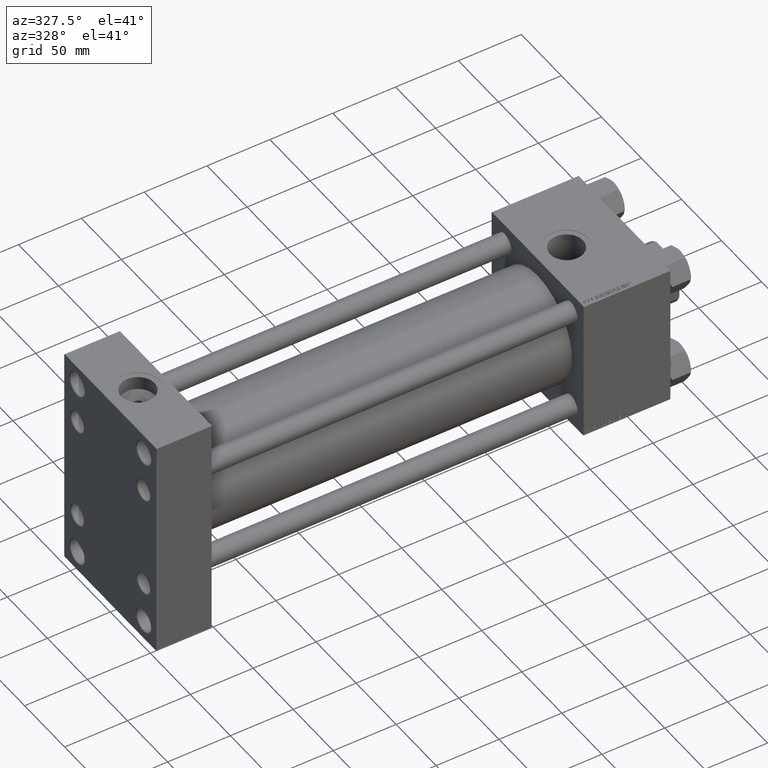
[diagram: clean part render]
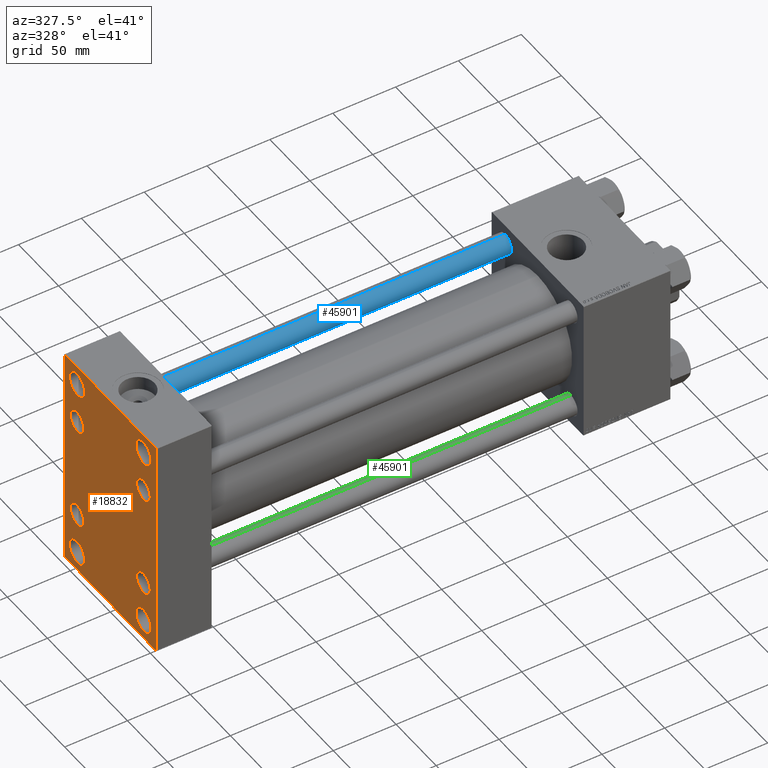
[diagram: same view with three faces highlighted in distinct colors, each labeled with its STEP entity id]
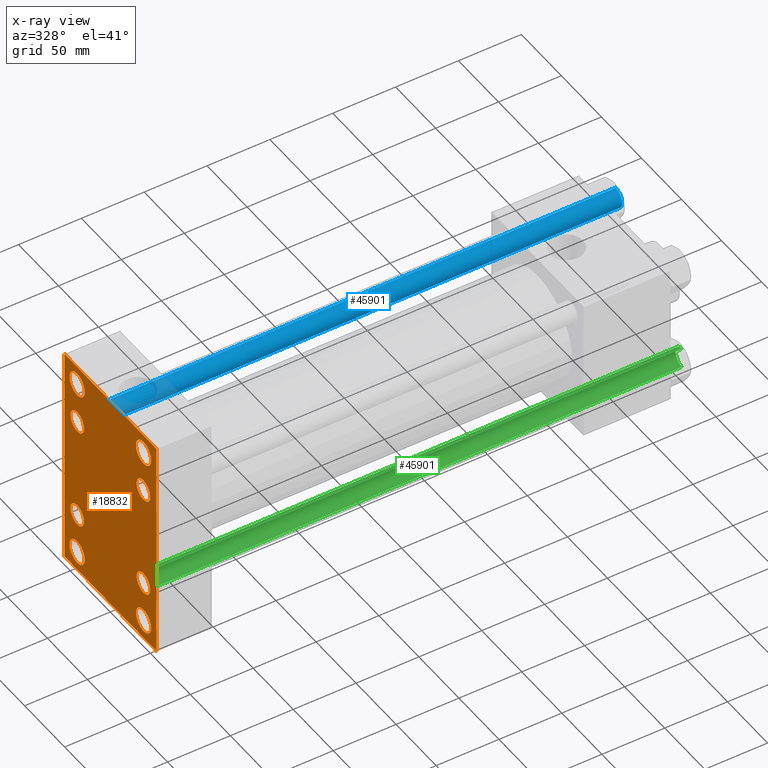
[diagram: x-ray of the same camera — body ghosted, the three highlighted faces saturated]
A machine part, auxiliary view with three faces highlighted in distinct colors.
The next image is the same camera in x-ray (body ghosted, the three faces saturated) — at least one of them is partly hidden behind the body in this view.
Their STEP definitions:

[orange] entity #18832 — the highlighted planar face has unit normal (-1, 0, 0).
#431 = CARTESIAN_POINT ( 'NONE',  ( 0.000000000000000000, 41.50000000000000711, -74.50000000000000000 ) ) ;
#459 = FACE_BOUND ( 'NONE', #35500, .T. ) ;
#1200 = CARTESIAN_POINT ( 'NONE',  ( 0.000000000000000000, 41.50000000000000711, -84.00000000000011369 ) ) ;
#1303 = EDGE_CURVE ( 'NONE', #9229, #30897, #12121, .T. ) ;
#1506 = AXIS2_PLACEMENT_3D ( 'NONE', #18229, #2062, #42933 ) ;
#1726 = DIRECTION ( 'NONE',  ( 0.000000000000000000, -1.000000000000000000, -1.206764157201257291E-16 ) ) ;
#2062 = DIRECTION ( 'NONE',  ( 1.000000000000000000, -0.000000000000000000, 0.000000000000000000 ) ) ;
#2424 = VECTOR ( 'NONE', #28697, 1000.000000000000000 ) ;
#2434 = VERTEX_POINT ( 'NONE', #16046 ) ;
#2514 = CARTESIAN_POINT ( 'NONE',  ( 0.000000000000000000, -41.50000000000000000, 74.50000000000000000 ) ) ;
#2684 = ORIENTED_EDGE ( 'NONE', *, *, #8012, .T. ) ;
#3325 = AXIS2_PLACEMENT_3D ( 'NONE', #8398, #24606, #4431 ) ;
#4431 = DIRECTION ( 'NONE',  ( -0.000000000000000000, 0.000000000000000000, 1.000000000000000000 ) ) ;
#5000 = EDGE_CURVE ( 'NONE', #33916, #39177, #42700, .T. ) ;
#5093 = DIRECTION ( 'NONE',  ( 1.000000000000000000, -0.000000000000000000, 0.000000000000000000 ) ) ;
#5345 = DIRECTION ( 'NONE',  ( 0.000000000000000000, 0.000000000000000000, 1.000000000000000000 ) ) ;
#5704 = DIRECTION ( 'NONE',  ( 1.000000000000000000, -0.000000000000000000, 0.000000000000000000 ) ) ;
#5920 = CARTESIAN_POINT ( 'NONE',  ( 0.000000000000000000, 41.50000000000000711, 74.50000000000000000 ) ) ;
#6469 = CIRCLE ( 'NONE', #10703, 9.500000000000119016 ) ;
#6533 = VERTEX_POINT ( 'NONE', #21334 ) ;
#7035 = AXIS2_PLACEMENT_3D ( 'NONE', #25129, #28865, #49576 ) ;
#7041 = CARTESIAN_POINT ( 'NONE',  ( 0.000000000000000000, -57.49999999999999289, 89.99999999999998579 ) ) ;
#7089 = ORIENTED_EDGE ( 'NONE', *, *, #41753, .T. ) ;
#7188 = EDGE_CURVE ( 'NONE', #12635, #2434, #19513, .T. ) ;
#7690 = EDGE_CURVE ( 'NONE', #18065, #44829, #19998, .T. ) ;
#7789 = LINE ( 'NONE', #11497, #34775 ) ;
#8012 = EDGE_CURVE ( 'NONE', #41757, #19490, #9883, .T. ) ;
#8333 = CIRCLE ( 'NONE', #25312, 9.500000000000119016 ) ;
#8398 = CARTESIAN_POINT ( 'NONE',  ( 0.000000000000000000, 0.000000000000000000, 0.000000000000000000 ) ) ;
#8632 = EDGE_CURVE ( 'NONE', #44414, #36721, #6469, .T. ) ;
#8925 = EDGE_CURVE ( 'NONE', #38288, #33050, #34469, .T. ) ;
#9229 = VERTEX_POINT ( 'NONE', #49749 ) ;
#9349 = CARTESIAN_POINT ( 'NONE',  ( 0.000000000000000000, -41.50000000000000000, -84.00000000000011369 ) ) ;
#9565 = EDGE_LOOP ( 'NONE', ( #12700, #13304 ) ) ;
#9883 = CIRCLE ( 'NONE', #34435, 9.500000000000119016 ) ;
#9992 = CARTESIAN_POINT ( 'NONE',  ( 0.000000000000000000, 41.50000000000000711, -74.50000000000000000 ) ) ;
#10565 = EDGE_CURVE ( 'NONE', #30897, #9229, #16746, .T. ) ;
#10703 = AXIS2_PLACEMENT_3D ( 'NONE', #5920, #38304, #38558 ) ;
#11040 = CARTESIAN_POINT ( 'NONE',  ( 0.000000000000000000, -41.34999999999998721, 32.85000000000002984 ) ) ;
#11100 = CARTESIAN_POINT ( 'NONE',  ( 0.000000000000000000, 41.34999999999999432, -41.35000000000000142 ) ) ;
#11222 = ORIENTED_EDGE ( 'NONE', *, *, #16264, .T. ) ;
#11413 = ORIENTED_EDGE ( 'NONE', *, *, #22853, .T. ) ;
#11497 = CARTESIAN_POINT ( 'NONE',  ( 0.000000000000000000, -73.49999999999882050, -73.50000000000189004 ) ) ;
#11563 = CARTESIAN_POINT ( 'NONE',  ( 0.000000000000000000, 57.00000000000000000, -90.00000000000000000 ) ) ;
#11877 = EDGE_CURVE ( 'NONE', #45757, #25219, #44760, .T. ) ;
#12104 = AXIS2_PLACEMENT_3D ( 'NONE', #431, #16597, #37049 ) ;
#12121 = CIRCLE ( 'NONE', #7035, 8.499999999999980460 ) ;
#12126 = FACE_BOUND ( 'NONE', #35203, .T. ) ;
#12566 = DIRECTION ( 'NONE',  ( 1.000000000000000000, -0.000000000000000000, 0.000000000000000000 ) ) ;
#12635 = VERTEX_POINT ( 'NONE', #50079 ) ;
#12700 = ORIENTED_EDGE ( 'NONE', *, *, #39051, .T. ) ;
#12828 = CIRCLE ( 'NONE', #44191, 9.500000000000119016 ) ;
#12967 = CIRCLE ( 'NONE', #12104, 9.500000000000119016 ) ;
#13230 = CARTESIAN_POINT ( 'NONE',  ( 0.000000000000000000, 41.34999999999999432, -32.85000000000002274 ) ) ;
#13304 = ORIENTED_EDGE ( 'NONE', *, *, #7690, .T. ) ;
#13802 = EDGE_CURVE ( 'NONE', #41169, #26399, #19225, .T. ) ;
#14418 = AXIS2_PLACEMENT_3D ( 'NONE', #24260, #12566, #40469 ) ;
#14699 = CARTESIAN_POINT ( 'NONE',  ( 0.000000000000000000, -41.34999999999998721, 41.35000000000000853 ) ) ;
#14868 = CARTESIAN_POINT ( 'NONE',  ( 0.000000000000000000, 41.50000000000000711, 84.00000000000011369 ) ) ;
#15049 = AXIS2_PLACEMENT_3D ( 'NONE', #19940, #36149, #15958 ) ;
#15422 = DIRECTION ( 'NONE',  ( 1.000000000000000000, -0.000000000000000000, 0.000000000000000000 ) ) ;
#15635 = EDGE_CURVE ( 'NONE', #39177, #49744, #26234, .T. ) ;
#15958 = DIRECTION ( 'NONE',  ( 0.000000000000000000, 0.000000000000000000, 1.000000000000000000 ) ) ;
#16046 = CARTESIAN_POINT ( 'NONE',  ( 0.000000000000000000, -57.49999999999999289, -89.49999999999998579 ) ) ;
#16089 = DIRECTION ( 'NONE',  ( 1.000000000000000000, -0.000000000000000000, 0.000000000000000000 ) ) ;
#16264 = EDGE_CURVE ( 'NONE', #51203, #37465, #16745, .T. ) ;
#16363 = FACE_BOUND ( 'NONE', #9565, .T. ) ;
#16597 = DIRECTION ( 'NONE',  ( 1.000000000000000000, -0.000000000000000000, 0.000000000000000000 ) ) ;
#16745 = LINE ( 'NONE', #41190, #2424 ) ;
#16746 = CIRCLE ( 'NONE', #37063, 8.499999999999980460 ) ;
#16976 = CARTESIAN_POINT ( 'NONE',  ( 0.000000000000000000, -41.50000000000000000, 64.99999999999987210 ) ) ;
#17116 = DIRECTION ( 'NONE',  ( 0.000000000000000000, 0.000000000000000000, 1.000000000000000000 ) ) ;
#18065 = VERTEX_POINT ( 'NONE', #40481 ) ;
#18229 = CARTESIAN_POINT ( 'NONE',  ( 0.000000000000000000, 41.50000000000000711, 74.50000000000000000 ) ) ;
#18687 = DIRECTION ( 'NONE',  ( 1.000000000000000000, -0.000000000000000000, 0.000000000000000000 ) ) ;
#18705 = ORIENTED_EDGE ( 'NONE', *, *, #7188, .F. ) ;
#18832 = ADVANCED_FACE ( 'NONE', ( #459, #20355, #52504, #36813, #12126, #36562, #16363, #19818, #41068 ), #37077, .T. ) ;
#19225 = CIRCLE ( 'NONE', #43849, 9.500000000000119016 ) ;
#19490 = VERTEX_POINT ( 'NONE', #1200 ) ;
#19513 = LINE ( 'NONE', #7041, #47152 ) ;
#19818 = FACE_BOUND ( 'NONE', #33492, .T. ) ;
#19940 = CARTESIAN_POINT ( 'NONE',  ( 0.000000000000000000, -41.50000000000000000, 74.50000000000000000 ) ) ;
#19998 = CIRCLE ( 'NONE', #23363, 8.499999999999980460 ) ;
#20067 = CARTESIAN_POINT ( 'NONE',  ( 0.000000000000000000, -41.34999999999998721, 41.35000000000000853 ) ) ;
#20335 = DIRECTION ( 'NONE',  ( 0.000000000000000000, 0.000000000000000000, 1.000000000000000000 ) ) ;
#20355 = FACE_BOUND ( 'NONE', #42416, .T. ) ;
#20569 = EDGE_CURVE ( 'NONE', #49744, #2434, #7789, .T. ) ;
#21096 = DIRECTION ( 'NONE',  ( 1.000000000000000000, -0.000000000000000000, 0.000000000000000000 ) ) ;
#21231 = EDGE_CURVE ( 'NONE', #33050, #38288, #28857, .T. ) ;
#21334 = CARTESIAN_POINT ( 'NONE',  ( 0.000000000000000000, 41.34999999999999432, 32.85000000000002274 ) ) ;
#21363 = EDGE_CURVE ( 'NONE', #6533, #49362, #23742, .T. ) ;
#21887 = DIRECTION ( 'NONE',  ( 0.000000000000000000, 0.000000000000000000, 1.000000000000000000 ) ) ;
#22732 = ORIENTED_EDGE ( 'NONE', *, *, #5000, .T. ) ;
#22853 = EDGE_CURVE ( 'NONE', #25219, #45757, #12828, .T. ) ;
#23044 = DIRECTION ( 'NONE',  ( 0.000000000000000000, 0.000000000000000000, 1.000000000000000000 ) ) ;
#23363 = AXIS2_PLACEMENT_3D ( 'NONE', #11100, #30500, #23044 ) ;
#23742 = CIRCLE ( 'NONE', #14418, 8.499999999999980460 ) ;
#24260 = CARTESIAN_POINT ( 'NONE',  ( 0.000000000000000000, 41.34999999999999432, 41.35000000000000142 ) ) ;
#24391 = CARTESIAN_POINT ( 'NONE',  ( 0.000000000000000000, 57.00000000000000000, 90.00000000000000000 ) ) ;
#24606 = DIRECTION ( 'NONE',  ( -1.000000000000000000, 0.000000000000000000, -0.000000000000000000 ) ) ;
#25122 = CARTESIAN_POINT ( 'NONE',  ( -0.000000000000000000, -73.49999999999960210, 73.50000000000062528 ) ) ;
#25129 = CARTESIAN_POINT ( 'NONE',  ( 0.000000000000000000, -41.34999999999998721, -41.35000000000000853 ) ) ;
#25219 = VERTEX_POINT ( 'NONE', #32642 ) ;
#25312 = AXIS2_PLACEMENT_3D ( 'NONE', #25784, #5093, #5345 ) ;
#25444 = DIRECTION ( 'NONE',  ( -0.000000000000000000, -0.7071067811865474617, -0.7071067811865474617 ) ) ;
#25784 = CARTESIAN_POINT ( 'NONE',  ( 0.000000000000000000, -41.50000000000000000, -74.50000000000000000 ) ) ;
#26234 = LINE ( 'NONE', #33932, #29508 ) ;
#26242 = CARTESIAN_POINT ( 'NONE',  ( 0.000000000000000000, 73.50000000000000000, -73.50000000000000000 ) ) ;
#26399 = VERTEX_POINT ( 'NONE', #39709 ) ;
#26665 = ORIENTED_EDGE ( 'NONE', *, *, #13802, .T. ) ;
#27187 = DIRECTION ( 'NONE',  ( 1.000000000000000000, -0.000000000000000000, 0.000000000000000000 ) ) ;
#27321 = EDGE_CURVE ( 'NONE', #19490, #41757, #12967, .T. ) ;
#27690 = CARTESIAN_POINT ( 'NONE',  ( 0.000000000000000000, -56.99999999999998579, -90.00000000000002842 ) ) ;
#28697 = DIRECTION ( 'NONE',  ( 0.000000000000000000, 0.7071067811865279218, -0.7071067811865672237 ) ) ;
#28857 = CIRCLE ( 'NONE', #49241, 8.499999999999980460 ) ;
#28865 = DIRECTION ( 'NONE',  ( 1.000000000000000000, -0.000000000000000000, 0.000000000000000000 ) ) ;
#29508 = VECTOR ( 'NONE', #42443, 1000.000000000000000 ) ;
#29659 = DIRECTION ( 'NONE',  ( 1.000000000000000000, -0.000000000000000000, 0.000000000000000000 ) ) ;
#30500 = DIRECTION ( 'NONE',  ( 1.000000000000000000, -0.000000000000000000, 0.000000000000000000 ) ) ;
#30823 = EDGE_LOOP ( 'NONE', ( #38529, #22732, #40458, #46356, #18705, #51729, #52083, #11222 ) ) ;
#30897 = VERTEX_POINT ( 'NONE', #42051 ) ;
#31576 = DIRECTION ( 'NONE',  ( -0.000000000000000000, 0.7071067811865524577, 0.7071067811865426878 ) ) ;
#32642 = CARTESIAN_POINT ( 'NONE',  ( 0.000000000000000000, -41.50000000000000000, 84.00000000000011369 ) ) ;
#32939 = VECTOR ( 'NONE', #39289, 1000.000000000000000 ) ;
#33050 = VERTEX_POINT ( 'NONE', #38428 ) ;
#33492 = EDGE_LOOP ( 'NONE', ( #47076, #48361 ) ) ;
#33637 = CARTESIAN_POINT ( 'NONE',  ( 0.000000000000000000, 41.34999999999999432, -41.35000000000000142 ) ) ;
#33913 = CARTESIAN_POINT ( 'NONE',  ( 0.000000000000000000, 41.50000000000000711, -64.99999999999987210 ) ) ;
#33916 = VERTEX_POINT ( 'NONE', #50665 ) ;
#33932 = CARTESIAN_POINT ( 'NONE',  ( 0.000000000000000000, 57.50000000000000000, -90.00000000000000000 ) ) ;
#34164 = DIRECTION ( 'NONE',  ( 0.000000000000000000, 0.000000000000000000, 1.000000000000000000 ) ) ;
#34419 = DIRECTION ( 'NONE',  ( 0.000000000000000000, 0.000000000000000000, 1.000000000000000000 ) ) ;
#34435 = AXIS2_PLACEMENT_3D ( 'NONE', #9992, #50638, #34419 ) ;
#34469 = CIRCLE ( 'NONE', #39602, 8.499999999999980460 ) ;
#34644 = EDGE_LOOP ( 'NONE', ( #41743, #51421 ) ) ;
#34775 = VECTOR ( 'NONE', #36725, 1000.000000000000000 ) ;
#34873 = DIRECTION ( 'NONE',  ( 0.000000000000000000, 0.000000000000000000, 1.000000000000000000 ) ) ;
#35203 = EDGE_LOOP ( 'NONE', ( #37863, #42819 ) ) ;
#35500 = EDGE_LOOP ( 'NONE', ( #7089, #37430 ) ) ;
#36022 = EDGE_CURVE ( 'NONE', #12635, #42893, #37609, .T. ) ;
#36149 = DIRECTION ( 'NONE',  ( 1.000000000000000000, -0.000000000000000000, 0.000000000000000000 ) ) ;
#36562 = FACE_BOUND ( 'NONE', #34644, .T. ) ;
#36721 = VERTEX_POINT ( 'NONE', #14868 ) ;
#36725 = DIRECTION ( 'NONE',  ( 0.000000000000000000, -0.7071067811865622277, 0.7071067811865328068 ) ) ;
#36813 = FACE_BOUND ( 'NONE', #44610, .T. ) ;
#36893 = VECTOR ( 'NONE', #31576, 1000.000000000000000 ) ;
#37049 = DIRECTION ( 'NONE',  ( 0.000000000000000000, 0.000000000000000000, 1.000000000000000000 ) ) ;
#37063 = AXIS2_PLACEMENT_3D ( 'NONE', #42089, #5704, #21887 ) ;
#37077 = PLANE ( 'NONE',  #3325 ) ;
#37430 = ORIENTED_EDGE ( 'NONE', *, *, #8632, .T. ) ;
#37465 = VERTEX_POINT ( 'NONE', #46269 ) ;
#37562 = CARTESIAN_POINT ( 'NONE',  ( 0.000000000000000000, -41.50000000000000000, -74.50000000000000000 ) ) ;
#37609 = LINE ( 'NONE', #25122, #36893 ) ;
#37863 = ORIENTED_EDGE ( 'NONE', *, *, #21231, .T. ) ;
#38288 = VERTEX_POINT ( 'NONE', #11040 ) ;
#38304 = DIRECTION ( 'NONE',  ( 1.000000000000000000, -0.000000000000000000, 0.000000000000000000 ) ) ;
#38428 = CARTESIAN_POINT ( 'NONE',  ( 0.000000000000000000, -41.34999999999998721, 49.84999999999999432 ) ) ;
#38529 = ORIENTED_EDGE ( 'NONE', *, *, #47982, .T. ) ;
#38558 = DIRECTION ( 'NONE',  ( 0.000000000000000000, 0.000000000000000000, 1.000000000000000000 ) ) ;
#39051 = EDGE_CURVE ( 'NONE', #44829, #18065, #48887, .T. ) ;
#39177 = VERTEX_POINT ( 'NONE', #11563 ) ;
#39289 = DIRECTION ( 'NONE',  ( 0.000000000000000000, 0.000000000000000000, -1.000000000000000000 ) ) ;
#39602 = AXIS2_PLACEMENT_3D ( 'NONE', #20067, #16089, #20335 ) ;
#39709 = CARTESIAN_POINT ( 'NONE',  ( 0.000000000000000000, -41.50000000000000000, -64.99999999999987210 ) ) ;
#39895 = CARTESIAN_POINT ( 'NONE',  ( 0.000000000000000000, 41.50000000000000711, 64.99999999999987210 ) ) ;
#39968 = DIRECTION ( 'NONE',  ( 0.000000000000000000, 0.000000000000000000, -1.000000000000000000 ) ) ;
#40458 = ORIENTED_EDGE ( 'NONE', *, *, #15635, .T. ) ;
#40469 = DIRECTION ( 'NONE',  ( 0.000000000000000000, 0.000000000000000000, 1.000000000000000000 ) ) ;
#40481 = CARTESIAN_POINT ( 'NONE',  ( 0.000000000000000000, 41.34999999999999432, -49.84999999999998721 ) ) ;
#40653 = VECTOR ( 'NONE', #1726, 1000.000000000000000 ) ;
#40701 = ORIENTED_EDGE ( 'NONE', *, *, #27321, .T. ) ;
#40822 = EDGE_LOOP ( 'NONE', ( #41313, #26665 ) ) ;
#40826 = CARTESIAN_POINT ( 'NONE',  ( 0.000000000000000000, 41.34999999999999432, 49.84999999999998721 ) ) ;
#41068 = FACE_OUTER_BOUND ( 'NONE', #30823, .T. ) ;
#41133 = VECTOR ( 'NONE', #25444, 1000.000000000000114 ) ;
#41169 = VERTEX_POINT ( 'NONE', #9349 ) ;
#41190 = CARTESIAN_POINT ( 'NONE',  ( 0.000000000000000000, 73.50000000000157740, 73.49999999999748468 ) ) ;
#41313 = ORIENTED_EDGE ( 'NONE', *, *, #47922, .T. ) ;
#41743 = ORIENTED_EDGE ( 'NONE', *, *, #10565, .T. ) ;
#41753 = EDGE_CURVE ( 'NONE', #36721, #44414, #48157, .T. ) ;
#41757 = VERTEX_POINT ( 'NONE', #33913 ) ;
#42051 = CARTESIAN_POINT ( 'NONE',  ( 0.000000000000000000, -41.34999999999998721, -32.85000000000002984 ) ) ;
#42089 = CARTESIAN_POINT ( 'NONE',  ( 0.000000000000000000, -41.34999999999998721, -41.35000000000000853 ) ) ;
#42416 = EDGE_LOOP ( 'NONE', ( #11413, #47130 ) ) ;
#42443 = DIRECTION ( 'NONE',  ( 0.000000000000000000, -1.000000000000000000, -2.413528314402514583E-16 ) ) ;
#42700 = LINE ( 'NONE', #26242, #41133 ) ;
#42819 = ORIENTED_EDGE ( 'NONE', *, *, #8925, .T. ) ;
#42893 = VERTEX_POINT ( 'NONE', #51684 ) ;
#42933 = DIRECTION ( 'NONE',  ( 0.000000000000000000, 0.000000000000000000, 1.000000000000000000 ) ) ;
#43252 = AXIS2_PLACEMENT_3D ( 'NONE', #51822, #15422, #43859 ) ;
#43849 = AXIS2_PLACEMENT_3D ( 'NONE', #37562, #21096, #17116 ) ;
#43859 = DIRECTION ( 'NONE',  ( 0.000000000000000000, 0.000000000000000000, 1.000000000000000000 ) ) ;
#44191 = AXIS2_PLACEMENT_3D ( 'NONE', #2514, #18687, #34873 ) ;
#44414 = VERTEX_POINT ( 'NONE', #39895 ) ;
#44610 = EDGE_LOOP ( 'NONE', ( #2684, #40701 ) ) ;
#44760 = CIRCLE ( 'NONE', #15049, 9.500000000000119016 ) ;
#44829 = VERTEX_POINT ( 'NONE', #13230 ) ;
#45282 = EDGE_CURVE ( 'NONE', #51203, #42893, #46834, .T. ) ;
#45757 = VERTEX_POINT ( 'NONE', #16976 ) ;
#46269 = CARTESIAN_POINT ( 'NONE',  ( 0.000000000000000000, 57.50000000000000000, 89.49999999999997158 ) ) ;
#46356 = ORIENTED_EDGE ( 'NONE', *, *, #20569, .T. ) ;
#46508 = LINE ( 'NONE', #47789, #32939 ) ;
#46834 = LINE ( 'NONE', #50296, #40653 ) ;
#47076 = ORIENTED_EDGE ( 'NONE', *, *, #50978, .T. ) ;
#47130 = ORIENTED_EDGE ( 'NONE', *, *, #11877, .T. ) ;
#47152 = VECTOR ( 'NONE', #39968, 1000.000000000000000 ) ;
#47641 = DIRECTION ( 'NONE',  ( 0.000000000000000000, 0.000000000000000000, 1.000000000000000000 ) ) ;
#47789 = CARTESIAN_POINT ( 'NONE',  ( 0.000000000000000000, 57.50000000000000000, 90.00000000000000000 ) ) ;
#47922 = EDGE_CURVE ( 'NONE', #26399, #41169, #8333, .T. ) ;
#47982 = EDGE_CURVE ( 'NONE', #37465, #33916, #46508, .T. ) ;
#48157 = CIRCLE ( 'NONE', #1506, 9.500000000000119016 ) ;
#48361 = ORIENTED_EDGE ( 'NONE', *, *, #21363, .T. ) ;
#48887 = CIRCLE ( 'NONE', #52285, 8.499999999999980460 ) ;
#49189 = CIRCLE ( 'NONE', #43252, 8.499999999999980460 ) ;
#49241 = AXIS2_PLACEMENT_3D ( 'NONE', #14699, #27187, #47641 ) ;
#49362 = VERTEX_POINT ( 'NONE', #40826 ) ;
#49576 = DIRECTION ( 'NONE',  ( 0.000000000000000000, 0.000000000000000000, 1.000000000000000000 ) ) ;
#49744 = VERTEX_POINT ( 'NONE', #27690 ) ;
#49749 = CARTESIAN_POINT ( 'NONE',  ( 0.000000000000000000, -41.34999999999998721, -49.84999999999999432 ) ) ;
#50079 = CARTESIAN_POINT ( 'NONE',  ( 0.000000000000000000, -57.49999999999999289, 89.50000000000001421 ) ) ;
#50296 = CARTESIAN_POINT ( 'NONE',  ( 0.000000000000000000, 57.50000000000000000, 90.00000000000000000 ) ) ;
#50638 = DIRECTION ( 'NONE',  ( 1.000000000000000000, -0.000000000000000000, 0.000000000000000000 ) ) ;
#50665 = CARTESIAN_POINT ( 'NONE',  ( 0.000000000000000000, 57.50000000000000000, -89.49999999999994316 ) ) ;
#50978 = EDGE_CURVE ( 'NONE', #49362, #6533, #49189, .T. ) ;
#51203 = VERTEX_POINT ( 'NONE', #24391 ) ;
#51421 = ORIENTED_EDGE ( 'NONE', *, *, #1303, .T. ) ;
#51684 = CARTESIAN_POINT ( 'NONE',  ( 0.000000000000000000, -57.00000000000001421, 89.99999999999998579 ) ) ;
#51729 = ORIENTED_EDGE ( 'NONE', *, *, #36022, .T. ) ;
#51822 = CARTESIAN_POINT ( 'NONE',  ( 0.000000000000000000, 41.34999999999999432, 41.35000000000000142 ) ) ;
#52083 = ORIENTED_EDGE ( 'NONE', *, *, #45282, .F. ) ;
#52285 = AXIS2_PLACEMENT_3D ( 'NONE', #33637, #29659, #34164 ) ;
#52504 = FACE_BOUND ( 'NONE', #40822, .T. ) ;

[blue] entity #45901 — the highlighted cylindrical surface (edge-blend (fillet) strip) has radius 8 mm, axis along (1, 0, 0).
#3329 = CARTESIAN_POINT ( 'NONE',  ( 8.000000000000000000, 9.797174393178825657E-16, 417.5000000000001137 ) ) ;
#3765 = CARTESIAN_POINT ( 'NONE',  ( 0.000000000000000000, 0.000000000000000000, 417.5000000000001137 ) ) ;
#3776 = CARTESIAN_POINT ( 'NONE',  ( 0.000000000000000000, 0.000000000000000000, 0.5000000000000004441 ) ) ;
#4814 = AXIS2_PLACEMENT_3D ( 'NONE', #3776, #19947, #15169 ) ;
#6228 = ORIENTED_EDGE ( 'NONE', *, *, #23201, .T. ) ;
#7994 = DIRECTION ( 'NONE',  ( 0.000000000000000000, 0.000000000000000000, -1.000000000000000000 ) ) ;
#9462 = EDGE_CURVE ( 'NONE', #39363, #28207, #18377, .T. ) ;
#10589 = ORIENTED_EDGE ( 'NONE', *, *, #49071, .T. ) ;
#11742 = EDGE_LOOP ( 'NONE', ( #6228, #10589, #13962, #48977 ) ) ;
#13962 = ORIENTED_EDGE ( 'NONE', *, *, #9462, .T. ) ;
#14290 = DIRECTION ( 'NONE',  ( -1.000000000000000000, 0.000000000000000000, 0.000000000000000000 ) ) ;
#15169 = DIRECTION ( 'NONE',  ( 1.000000000000000000, 0.000000000000000000, 0.000000000000000000 ) ) ;
#18338 = CARTESIAN_POINT ( 'NONE',  ( -8.000000000000000000, 0.000000000000000000, 417.5000000000001137 ) ) ;
#18377 = CIRCLE ( 'NONE', #4814, 8.000000000000000000 ) ;
#19947 = DIRECTION ( 'NONE',  ( -0.000000000000000000, -0.000000000000000000, 1.000000000000000000 ) ) ;
#20202 = DIRECTION ( 'NONE',  ( 1.000000000000000000, 0.000000000000000000, 0.000000000000000000 ) ) ;
#23188 = CARTESIAN_POINT ( 'NONE',  ( -8.000000000000000000, 0.000000000000000000, 418.0000000000000000 ) ) ;
#23201 = EDGE_CURVE ( 'NONE', #35944, #32594, #32305, .T. ) ;
#24919 = CARTESIAN_POINT ( 'NONE',  ( -8.000000000000000000, 0.000000000000000000, 0.5000000000000004441 ) ) ;
#26261 = FACE_OUTER_BOUND ( 'NONE', #11742, .T. ) ;
#26357 = CARTESIAN_POINT ( 'NONE',  ( 8.000000000000000000, 9.797174393178825657E-16, 0.5000000000000004441 ) ) ;
#26917 = DIRECTION ( 'NONE',  ( -0.000000000000000000, -0.000000000000000000, -1.000000000000000000 ) ) ;
#27469 = EDGE_CURVE ( 'NONE', #35944, #28207, #47637, .T. ) ;
#28207 = VERTEX_POINT ( 'NONE', #24919 ) ;
#30484 = LINE ( 'NONE', #49639, #38065 ) ;
#32305 = CIRCLE ( 'NONE', #39098, 8.000000000000000000 ) ;
#32594 = VERTEX_POINT ( 'NONE', #3329 ) ;
#33688 = DIRECTION ( 'NONE',  ( -0.000000000000000000, -0.000000000000000000, -1.000000000000000000 ) ) ;
#35944 = VERTEX_POINT ( 'NONE', #18338 ) ;
#38065 = VECTOR ( 'NONE', #50167, 1000.000000000000000 ) ;
#39098 = AXIS2_PLACEMENT_3D ( 'NONE', #3765, #7994, #20202 ) ;
#39363 = VERTEX_POINT ( 'NONE', #26357 ) ;
#42467 = CARTESIAN_POINT ( 'NONE',  ( 0.000000000000000000, 0.000000000000000000, 418.0000000000000000 ) ) ;
#42724 = CYLINDRICAL_SURFACE ( 'NONE', #43177, 8.000000000000000000 ) ;
#43177 = AXIS2_PLACEMENT_3D ( 'NONE', #42467, #33688, #14290 ) ;
#45901 = ADVANCED_FACE ( 'NONE', ( #26261 ), #42724, .T. ) ;
#47637 = LINE ( 'NONE', #23188, #52023 ) ;
#48977 = ORIENTED_EDGE ( 'NONE', *, *, #27469, .F. ) ;
#49071 = EDGE_CURVE ( 'NONE', #32594, #39363, #30484, .T. ) ;
#49639 = CARTESIAN_POINT ( 'NONE',  ( 8.000000000000000000, 9.797174393178825657E-16, 418.0000000000000000 ) ) ;
#50167 = DIRECTION ( 'NONE',  ( -0.000000000000000000, -0.000000000000000000, -1.000000000000000000 ) ) ;
#52023 = VECTOR ( 'NONE', #26917, 1000.000000000000000 ) ;

[green] entity #45901 — the highlighted cylindrical surface (edge-blend (fillet) strip) has radius 8 mm, axis along (1, -0, -0).
#3329 = CARTESIAN_POINT ( 'NONE',  ( 8.000000000000000000, 9.797174393178825657E-16, 417.5000000000001137 ) ) ;
#3765 = CARTESIAN_POINT ( 'NONE',  ( 0.000000000000000000, 0.000000000000000000, 417.5000000000001137 ) ) ;
#3776 = CARTESIAN_POINT ( 'NONE',  ( 0.000000000000000000, 0.000000000000000000, 0.5000000000000004441 ) ) ;
#4814 = AXIS2_PLACEMENT_3D ( 'NONE', #3776, #19947, #15169 ) ;
#6228 = ORIENTED_EDGE ( 'NONE', *, *, #23201, .T. ) ;
#7994 = DIRECTION ( 'NONE',  ( 0.000000000000000000, 0.000000000000000000, -1.000000000000000000 ) ) ;
#9462 = EDGE_CURVE ( 'NONE', #39363, #28207, #18377, .T. ) ;
#10589 = ORIENTED_EDGE ( 'NONE', *, *, #49071, .T. ) ;
#11742 = EDGE_LOOP ( 'NONE', ( #6228, #10589, #13962, #48977 ) ) ;
#13962 = ORIENTED_EDGE ( 'NONE', *, *, #9462, .T. ) ;
#14290 = DIRECTION ( 'NONE',  ( -1.000000000000000000, 0.000000000000000000, 0.000000000000000000 ) ) ;
#15169 = DIRECTION ( 'NONE',  ( 1.000000000000000000, 0.000000000000000000, 0.000000000000000000 ) ) ;
#18338 = CARTESIAN_POINT ( 'NONE',  ( -8.000000000000000000, 0.000000000000000000, 417.5000000000001137 ) ) ;
#18377 = CIRCLE ( 'NONE', #4814, 8.000000000000000000 ) ;
#19947 = DIRECTION ( 'NONE',  ( -0.000000000000000000, -0.000000000000000000, 1.000000000000000000 ) ) ;
#20202 = DIRECTION ( 'NONE',  ( 1.000000000000000000, 0.000000000000000000, 0.000000000000000000 ) ) ;
#23188 = CARTESIAN_POINT ( 'NONE',  ( -8.000000000000000000, 0.000000000000000000, 418.0000000000000000 ) ) ;
#23201 = EDGE_CURVE ( 'NONE', #35944, #32594, #32305, .T. ) ;
#24919 = CARTESIAN_POINT ( 'NONE',  ( -8.000000000000000000, 0.000000000000000000, 0.5000000000000004441 ) ) ;
#26261 = FACE_OUTER_BOUND ( 'NONE', #11742, .T. ) ;
#26357 = CARTESIAN_POINT ( 'NONE',  ( 8.000000000000000000, 9.797174393178825657E-16, 0.5000000000000004441 ) ) ;
#26917 = DIRECTION ( 'NONE',  ( -0.000000000000000000, -0.000000000000000000, -1.000000000000000000 ) ) ;
#27469 = EDGE_CURVE ( 'NONE', #35944, #28207, #47637, .T. ) ;
#28207 = VERTEX_POINT ( 'NONE', #24919 ) ;
#30484 = LINE ( 'NONE', #49639, #38065 ) ;
#32305 = CIRCLE ( 'NONE', #39098, 8.000000000000000000 ) ;
#32594 = VERTEX_POINT ( 'NONE', #3329 ) ;
#33688 = DIRECTION ( 'NONE',  ( -0.000000000000000000, -0.000000000000000000, -1.000000000000000000 ) ) ;
#35944 = VERTEX_POINT ( 'NONE', #18338 ) ;
#38065 = VECTOR ( 'NONE', #50167, 1000.000000000000000 ) ;
#39098 = AXIS2_PLACEMENT_3D ( 'NONE', #3765, #7994, #20202 ) ;
#39363 = VERTEX_POINT ( 'NONE', #26357 ) ;
#42467 = CARTESIAN_POINT ( 'NONE',  ( 0.000000000000000000, 0.000000000000000000, 418.0000000000000000 ) ) ;
#42724 = CYLINDRICAL_SURFACE ( 'NONE', #43177, 8.000000000000000000 ) ;
#43177 = AXIS2_PLACEMENT_3D ( 'NONE', #42467, #33688, #14290 ) ;
#45901 = ADVANCED_FACE ( 'NONE', ( #26261 ), #42724, .T. ) ;
#47637 = LINE ( 'NONE', #23188, #52023 ) ;
#48977 = ORIENTED_EDGE ( 'NONE', *, *, #27469, .F. ) ;
#49071 = EDGE_CURVE ( 'NONE', #32594, #39363, #30484, .T. ) ;
#49639 = CARTESIAN_POINT ( 'NONE',  ( 8.000000000000000000, 9.797174393178825657E-16, 418.0000000000000000 ) ) ;
#50167 = DIRECTION ( 'NONE',  ( -0.000000000000000000, -0.000000000000000000, -1.000000000000000000 ) ) ;
#52023 = VECTOR ( 'NONE', #26917, 1000.000000000000000 ) ;